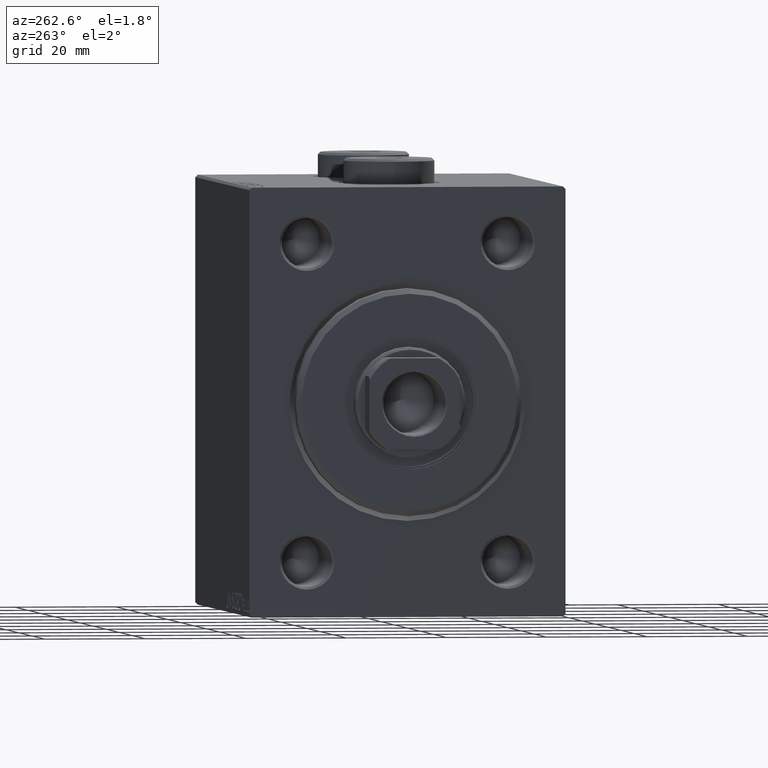
[diagram: clean part render]
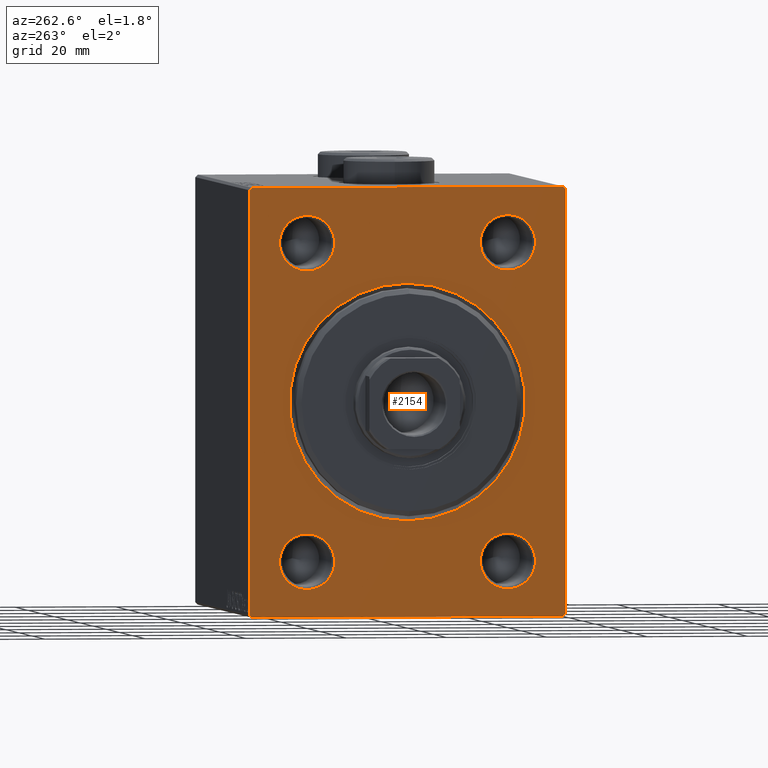
[diagram: same view with one face highlighted and labeled with its STEP entity id]
A machine part, auxiliary view. The second image highlights one B-rep face of the part: STEP entity #2154.
In plain terms, the highlighted planar face has unit normal (1, 0, 0).
Its self-contained STEP definition (entity closure, byte-faithful):
#385 = VERTEX_POINT ( 'NONE', #1356 ) ;
#743 = ORIENTED_EDGE ( 'NONE', *, *, #34909, .T. ) ;
#1356 = CARTESIAN_POINT ( 'NONE',  ( 0.000000000000000000, 2.877919977996280715E-15, -23.50000000000000355 ) ) ;
#1626 = ORIENTED_EDGE ( 'NONE', *, *, #16003, .T. ) ;
#1781 = ORIENTED_EDGE ( 'NONE', *, *, #14869, .T. ) ;
#2101 = DIRECTION ( 'NONE',  ( 1.000000000000000000, 0.000000000000000000, 0.000000000000000000 ) ) ;
#2154 = ADVANCED_FACE ( 'NONE', ( #7216, #34551, #23967, #35234, #2866, #37995 ), #6543, .F. ) ;
#2199 = CARTESIAN_POINT ( 'NONE',  ( 0.000000000000000000, 31.50000000000000000, 42.49999999999999289 ) ) ;
#2288 = AXIS2_PLACEMENT_3D ( 'NONE', #33462, #41251, #34358 ) ;
#2357 = VECTOR ( 'NONE', #12755, 1000.000000000000000 ) ;
#2825 = VECTOR ( 'NONE', #7398, 1000.000000000000000 ) ;
#2847 = CARTESIAN_POINT ( 'NONE',  ( 0.000000000000000000, 0.000000000000000000, 23.50000000000000355 ) ) ;
#2866 = FACE_BOUND ( 'NONE', #3319, .T. ) ;
#3124 = VERTEX_POINT ( 'NONE', #34957 ) ;
#3319 = EDGE_LOOP ( 'NONE', ( #42731, #743 ) ) ;
#3548 = CARTESIAN_POINT ( 'NONE',  ( 0.000000000000000000, 0.000000000000000000, 0.000000000000000000 ) ) ;
#3841 = DIRECTION ( 'NONE',  ( 0.000000000000000000, 0.000000000000000000, -1.000000000000000000 ) ) ;
#4008 = VERTEX_POINT ( 'NONE', #23758 ) ;
#4012 = DIRECTION ( 'NONE',  ( 0.000000000000000000, 0.000000000000000000, -1.000000000000000000 ) ) ;
#5220 = CARTESIAN_POINT ( 'NONE',  ( 0.000000000000000000, -20.00000000000000355, -25.99999999999999645 ) ) ;
#5226 = VERTEX_POINT ( 'NONE', #39572 ) ;
#5475 = DIRECTION ( 'NONE',  ( 0.000000000000000000, -0.7071067811865376918, -0.7071067811865574537 ) ) ;
#6446 = CIRCLE ( 'NONE', #20350, 5.500000000000005329 ) ;
#6543 = PLANE ( 'NONE',  #34954 ) ;
#6592 = AXIS2_PLACEMENT_3D ( 'NONE', #23563, #30468, #33250 ) ;
#7048 = EDGE_CURVE ( 'NONE', #25453, #39281, #35635, .T. ) ;
#7065 = EDGE_CURVE ( 'NONE', #8774, #385, #27759, .T. ) ;
#7106 = ORIENTED_EDGE ( 'NONE', *, *, #19117, .T. ) ;
#7216 = FACE_BOUND ( 'NONE', #23499, .T. ) ;
#7249 = EDGE_CURVE ( 'NONE', #25453, #7932, #26870, .T. ) ;
#7398 = DIRECTION ( 'NONE',  ( 0.000000000000000000, 1.000000000000000000, 0.000000000000000000 ) ) ;
#7482 = ORIENTED_EDGE ( 'NONE', *, *, #33952, .T. ) ;
#7503 = CARTESIAN_POINT ( 'NONE',  ( 0.000000000000000000, 19.99999999999999645, 31.50000000000000000 ) ) ;
#7801 = CARTESIAN_POINT ( 'NONE',  ( 0.000000000000000000, 30.99999999999997158, 42.49999999999999289 ) ) ;
#7932 = VERTEX_POINT ( 'NONE', #9268 ) ;
#8290 = CARTESIAN_POINT ( 'NONE',  ( 0.000000000000000000, 19.99999999999999645, 31.50000000000000000 ) ) ;
#8774 = VERTEX_POINT ( 'NONE', #2847 ) ;
#8784 = ORIENTED_EDGE ( 'NONE', *, *, #7065, .T. ) ;
#8883 = VERTEX_POINT ( 'NONE', #15869 ) ;
#8957 = DIRECTION ( 'NONE',  ( 1.000000000000000000, 0.000000000000000000, 0.000000000000000000 ) ) ;
#8991 = ORIENTED_EDGE ( 'NONE', *, *, #7249, .T. ) ;
#9268 = CARTESIAN_POINT ( 'NONE',  ( 0.000000000000000000, -31.50000000000000000, -42.00000000000000000 ) ) ;
#9507 = EDGE_LOOP ( 'NONE', ( #25500, #7106 ) ) ;
#9694 = CIRCLE ( 'NONE', #33143, 5.500000000000005329 ) ;
#9871 = CARTESIAN_POINT ( 'NONE',  ( 0.000000000000000000, -30.99999999999997158, -42.50000000000000711 ) ) ;
#10137 = ORIENTED_EDGE ( 'NONE', *, *, #17585, .T. ) ;
#10269 = CIRCLE ( 'NONE', #30797, 5.500000000000005329 ) ;
#11381 = ORIENTED_EDGE ( 'NONE', *, *, #42913, .T. ) ;
#12058 = LINE ( 'NONE', #22834, #27188 ) ;
#12332 = DIRECTION ( 'NONE',  ( 1.000000000000000000, 0.000000000000000000, 0.000000000000000000 ) ) ;
#12484 = VECTOR ( 'NONE', #4012, 1000.000000000000000 ) ;
#12524 = EDGE_CURVE ( 'NONE', #19456, #8883, #17531, .T. ) ;
#12755 = DIRECTION ( 'NONE',  ( 0.000000000000000000, -1.000000000000000000, -1.101411730778925171E-16 ) ) ;
#13722 = DIRECTION ( 'NONE',  ( 1.000000000000000000, 0.000000000000000000, 0.000000000000000000 ) ) ;
#13976 = EDGE_CURVE ( 'NONE', #17363, #34761, #34449, .T. ) ;
#14498 = EDGE_CURVE ( 'NONE', #44687, #7932, #38666, .T. ) ;
#14869 = EDGE_CURVE ( 'NONE', #4008, #36509, #39628, .T. ) ;
#15288 = EDGE_LOOP ( 'NONE', ( #31667, #1626, #45245, #11381, #28604, #7482, #22225, #8991 ) ) ;
#15329 = CARTESIAN_POINT ( 'NONE',  ( 0.000000000000000000, -20.00000000000000355, -31.50000000000000000 ) ) ;
#15471 = CARTESIAN_POINT ( 'NONE',  ( 0.000000000000000000, -20.00000000000000355, -31.50000000000000000 ) ) ;
#15692 = DIRECTION ( 'NONE',  ( 1.000000000000000000, 0.000000000000000000, 0.000000000000000000 ) ) ;
#15869 = CARTESIAN_POINT ( 'NONE',  ( 0.000000000000000000, -20.00000000000000355, 25.99999999999999645 ) ) ;
#16003 = EDGE_CURVE ( 'NONE', #44687, #36819, #16737, .T. ) ;
#16054 = DIRECTION ( 'NONE',  ( 0.000000000000000000, 0.000000000000000000, -1.000000000000000000 ) ) ;
#16737 = LINE ( 'NONE', #27325, #29369 ) ;
#16850 = DIRECTION ( 'NONE',  ( 0.000000000000000000, 0.000000000000000000, -1.000000000000000000 ) ) ;
#17363 = VERTEX_POINT ( 'NONE', #28434 ) ;
#17391 = CARTESIAN_POINT ( 'NONE',  ( 0.000000000000000000, -20.00000000000000355, 31.50000000000000000 ) ) ;
#17531 = CIRCLE ( 'NONE', #39566, 5.500000000000005329 ) ;
#17585 = EDGE_CURVE ( 'NONE', #385, #8774, #44797, .T. ) ;
#17600 = DIRECTION ( 'NONE',  ( 1.000000000000000000, 0.000000000000000000, 0.000000000000000000 ) ) ;
#17948 = CARTESIAN_POINT ( 'NONE',  ( 0.000000000000000000, 0.000000000000000000, 0.000000000000000000 ) ) ;
#18499 = EDGE_CURVE ( 'NONE', #45164, #40209, #34583, .T. ) ;
#19117 = EDGE_CURVE ( 'NONE', #8883, #19456, #9694, .T. ) ;
#19210 = ORIENTED_EDGE ( 'NONE', *, *, #41198, .T. ) ;
#19456 = VERTEX_POINT ( 'NONE', #41457 ) ;
#20343 = EDGE_LOOP ( 'NONE', ( #19210, #1781 ) ) ;
#20350 = AXIS2_PLACEMENT_3D ( 'NONE', #15471, #15692, #33392 ) ;
#20375 = CARTESIAN_POINT ( 'NONE',  ( 0.000000000000000000, 19.99999999999999645, -31.50000000000000000 ) ) ;
#21214 = CARTESIAN_POINT ( 'NONE',  ( 0.000000000000000000, -31.50000000000000000, 42.49999999999998579 ) ) ;
#21900 = AXIS2_PLACEMENT_3D ( 'NONE', #17948, #32658, #25524 ) ;
#22225 = ORIENTED_EDGE ( 'NONE', *, *, #7048, .F. ) ;
#22427 = EDGE_CURVE ( 'NONE', #5226, #36819, #41216, .T. ) ;
#22834 = CARTESIAN_POINT ( 'NONE',  ( 0.000000000000000000, 31.50000000000001421, -42.50000000000000711 ) ) ;
#23499 = EDGE_LOOP ( 'NONE', ( #8784, #10137 ) ) ;
#23563 = CARTESIAN_POINT ( 'NONE',  ( 0.000000000000000000, 19.99999999999999645, -31.50000000000000000 ) ) ;
#23758 = CARTESIAN_POINT ( 'NONE',  ( 0.000000000000000000, 19.99999999999999645, 25.99999999999999645 ) ) ;
#23967 = FACE_BOUND ( 'NONE', #9507, .T. ) ;
#24845 = CARTESIAN_POINT ( 'NONE',  ( 0.000000000000000000, -31.50000000000000000, -42.50000000000000711 ) ) ;
#25453 = VERTEX_POINT ( 'NONE', #40996 ) ;
#25500 = ORIENTED_EDGE ( 'NONE', *, *, #12524, .T. ) ;
#25524 = DIRECTION ( 'NONE',  ( 0.000000000000000000, 0.000000000000000000, -1.000000000000000000 ) ) ;
#25926 = CARTESIAN_POINT ( 'NONE',  ( 0.000000000000000000, 31.00000000000000000, -42.50000000000000711 ) ) ;
#26633 = ORIENTED_EDGE ( 'NONE', *, *, #29894, .T. ) ;
#26845 = ORIENTED_EDGE ( 'NONE', *, *, #18499, .T. ) ;
#26870 = LINE ( 'NONE', #9871, #41720 ) ;
#27188 = VECTOR ( 'NONE', #44190, 1000.000000000000000 ) ;
#27325 = CARTESIAN_POINT ( 'NONE',  ( 0.000000000000000000, -31.50000000000000000, 42.00000000000000000 ) ) ;
#27738 = DIRECTION ( 'NONE',  ( 0.000000000000000000, 0.000000000000000000, -1.000000000000000000 ) ) ;
#27759 = CIRCLE ( 'NONE', #21900, 23.50000000000000355 ) ;
#28434 = CARTESIAN_POINT ( 'NONE',  ( 0.000000000000000000, 19.99999999999999645, -25.99999999999999645 ) ) ;
#28578 = VECTOR ( 'NONE', #5475, 999.9999999999998863 ) ;
#28604 = ORIENTED_EDGE ( 'NONE', *, *, #37400, .F. ) ;
#28781 = AXIS2_PLACEMENT_3D ( 'NONE', #7503, #17600, #3841 ) ;
#28783 = DIRECTION ( 'NONE',  ( -0.000000000000000000, 0.7071067811865376918, 0.7071067811865573427 ) ) ;
#29291 = CARTESIAN_POINT ( 'NONE',  ( 0.000000000000000000, -31.00000000000002842, 42.49999999999998579 ) ) ;
#29369 = VECTOR ( 'NONE', #28783, 1000.000000000000114 ) ;
#29375 = CARTESIAN_POINT ( 'NONE',  ( 0.000000000000000000, -20.00000000000000355, -37.00000000000000711 ) ) ;
#29894 = EDGE_CURVE ( 'NONE', #40209, #45164, #6446, .T. ) ;
#30086 = AXIS2_PLACEMENT_3D ( 'NONE', #8290, #8957, #16054 ) ;
#30098 = DIRECTION ( 'NONE',  ( -0.000000000000000000, -0.7071067811865622277, 0.7071067811865328068 ) ) ;
#30259 = LINE ( 'NONE', #36925, #28578 ) ;
#30468 = DIRECTION ( 'NONE',  ( 1.000000000000000000, 0.000000000000000000, 0.000000000000000000 ) ) ;
#30797 = AXIS2_PLACEMENT_3D ( 'NONE', #20375, #13722, #27738 ) ;
#30959 = DIRECTION ( 'NONE',  ( 0.000000000000000000, 0.000000000000000000, -1.000000000000000000 ) ) ;
#31422 = DIRECTION ( 'NONE',  ( 0.000000000000000000, 0.000000000000000000, -1.000000000000000000 ) ) ;
#31667 = ORIENTED_EDGE ( 'NONE', *, *, #14498, .F. ) ;
#32491 = VECTOR ( 'NONE', #36045, 999.9999999999998863 ) ;
#32586 = DIRECTION ( 'NONE',  ( 0.000000000000000000, 0.000000000000000000, -1.000000000000000000 ) ) ;
#32658 = DIRECTION ( 'NONE',  ( 1.000000000000000000, 0.000000000000000000, 0.000000000000000000 ) ) ;
#33143 = AXIS2_PLACEMENT_3D ( 'NONE', #17391, #2101, #30959 ) ;
#33250 = DIRECTION ( 'NONE',  ( 0.000000000000000000, 0.000000000000000000, -1.000000000000000000 ) ) ;
#33392 = DIRECTION ( 'NONE',  ( 0.000000000000000000, 0.000000000000000000, -1.000000000000000000 ) ) ;
#33462 = CARTESIAN_POINT ( 'NONE',  ( 0.000000000000000000, 0.000000000000000000, 0.000000000000000000 ) ) ;
#33952 = EDGE_CURVE ( 'NONE', #37966, #39281, #30259, .T. ) ;
#34358 = DIRECTION ( 'NONE',  ( 0.000000000000000000, 0.000000000000000000, -1.000000000000000000 ) ) ;
#34449 = CIRCLE ( 'NONE', #6592, 5.500000000000005329 ) ;
#34509 = CARTESIAN_POINT ( 'NONE',  ( 0.000000000000000000, 19.99999999999999645, -37.00000000000000711 ) ) ;
#34551 = FACE_BOUND ( 'NONE', #38131, .T. ) ;
#34583 = CIRCLE ( 'NONE', #44832, 5.500000000000005329 ) ;
#34761 = VERTEX_POINT ( 'NONE', #34509 ) ;
#34865 = CARTESIAN_POINT ( 'NONE',  ( 0.000000000000000000, -20.00000000000000355, 31.50000000000000000 ) ) ;
#34909 = EDGE_CURVE ( 'NONE', #34761, #17363, #10269, .T. ) ;
#34954 = AXIS2_PLACEMENT_3D ( 'NONE', #3548, #41655, #16850 ) ;
#34957 = CARTESIAN_POINT ( 'NONE',  ( 0.000000000000000000, 31.50000000000000000, 41.99999999999997868 ) ) ;
#35234 = FACE_BOUND ( 'NONE', #20343, .T. ) ;
#35635 = LINE ( 'NONE', #24845, #2825 ) ;
#35812 = LINE ( 'NONE', #7801, #32491 ) ;
#36045 = DIRECTION ( 'NONE',  ( -0.000000000000000000, 0.7071067811865574537, -0.7071067811865376918 ) ) ;
#36509 = VERTEX_POINT ( 'NONE', #44570 ) ;
#36819 = VERTEX_POINT ( 'NONE', #29291 ) ;
#36925 = CARTESIAN_POINT ( 'NONE',  ( 0.000000000000000000, 31.50000000000001421, -41.99999999999997868 ) ) ;
#37400 = EDGE_CURVE ( 'NONE', #37966, #3124, #12058, .T. ) ;
#37966 = VERTEX_POINT ( 'NONE', #42062 ) ;
#37995 = FACE_OUTER_BOUND ( 'NONE', #15288, .T. ) ;
#38131 = EDGE_LOOP ( 'NONE', ( #26845, #26633 ) ) ;
#38666 = LINE ( 'NONE', #21214, #12484 ) ;
#39281 = VERTEX_POINT ( 'NONE', #25926 ) ;
#39566 = AXIS2_PLACEMENT_3D ( 'NONE', #34865, #45421, #31422 ) ;
#39572 = CARTESIAN_POINT ( 'NONE',  ( 0.000000000000000000, 30.99999999999997158, 42.49999999999999289 ) ) ;
#39628 = CIRCLE ( 'NONE', #30086, 5.500000000000005329 ) ;
#40209 = VERTEX_POINT ( 'NONE', #29375 ) ;
#40996 = CARTESIAN_POINT ( 'NONE',  ( 0.000000000000000000, -30.99999999999997158, -42.50000000000000711 ) ) ;
#41198 = EDGE_CURVE ( 'NONE', #36509, #4008, #41243, .T. ) ;
#41216 = LINE ( 'NONE', #2199, #2357 ) ;
#41243 = CIRCLE ( 'NONE', #28781, 5.500000000000005329 ) ;
#41251 = DIRECTION ( 'NONE',  ( 1.000000000000000000, 0.000000000000000000, 0.000000000000000000 ) ) ;
#41350 = CARTESIAN_POINT ( 'NONE',  ( 0.000000000000000000, -31.50000000000000000, 42.00000000000000000 ) ) ;
#41457 = CARTESIAN_POINT ( 'NONE',  ( 0.000000000000000000, -20.00000000000000355, 37.00000000000000711 ) ) ;
#41655 = DIRECTION ( 'NONE',  ( 1.000000000000000000, 0.000000000000000000, 0.000000000000000000 ) ) ;
#41720 = VECTOR ( 'NONE', #30098, 1000.000000000000000 ) ;
#42062 = CARTESIAN_POINT ( 'NONE',  ( 0.000000000000000000, 31.50000000000001421, -41.99999999999997868 ) ) ;
#42731 = ORIENTED_EDGE ( 'NONE', *, *, #13976, .T. ) ;
#42913 = EDGE_CURVE ( 'NONE', #5226, #3124, #35812, .T. ) ;
#44190 = DIRECTION ( 'NONE',  ( 0.000000000000000000, -1.632680918566406547E-16, 1.000000000000000000 ) ) ;
#44570 = CARTESIAN_POINT ( 'NONE',  ( 0.000000000000000000, 19.99999999999999645, 37.00000000000000711 ) ) ;
#44687 = VERTEX_POINT ( 'NONE', #41350 ) ;
#44797 = CIRCLE ( 'NONE', #2288, 23.50000000000000355 ) ;
#44832 = AXIS2_PLACEMENT_3D ( 'NONE', #15329, #12332, #32586 ) ;
#45164 = VERTEX_POINT ( 'NONE', #5220 ) ;
#45245 = ORIENTED_EDGE ( 'NONE', *, *, #22427, .F. ) ;
#45421 = DIRECTION ( 'NONE',  ( 1.000000000000000000, 0.000000000000000000, 0.000000000000000000 ) ) ;